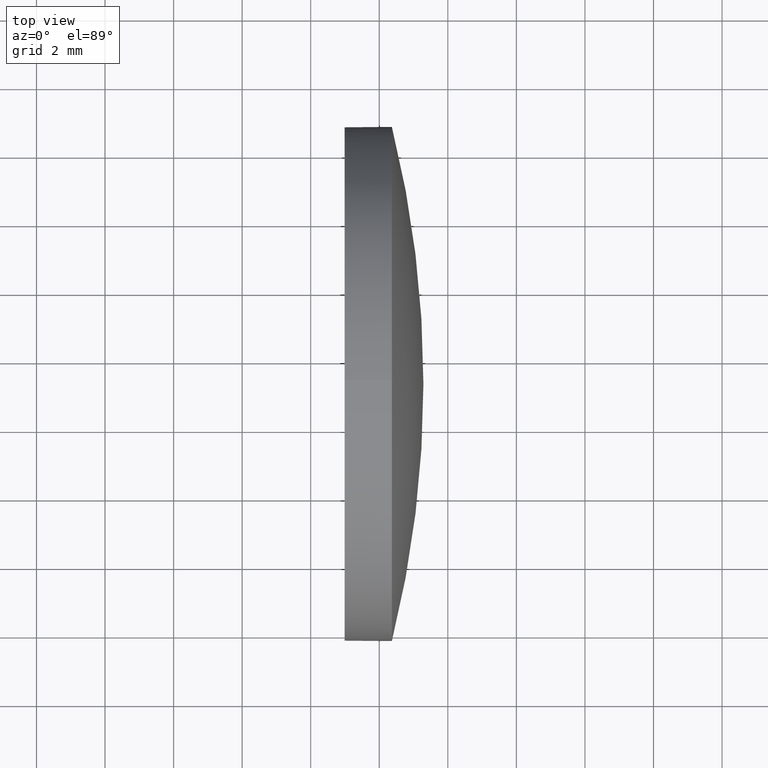
[diagram: clean part render]
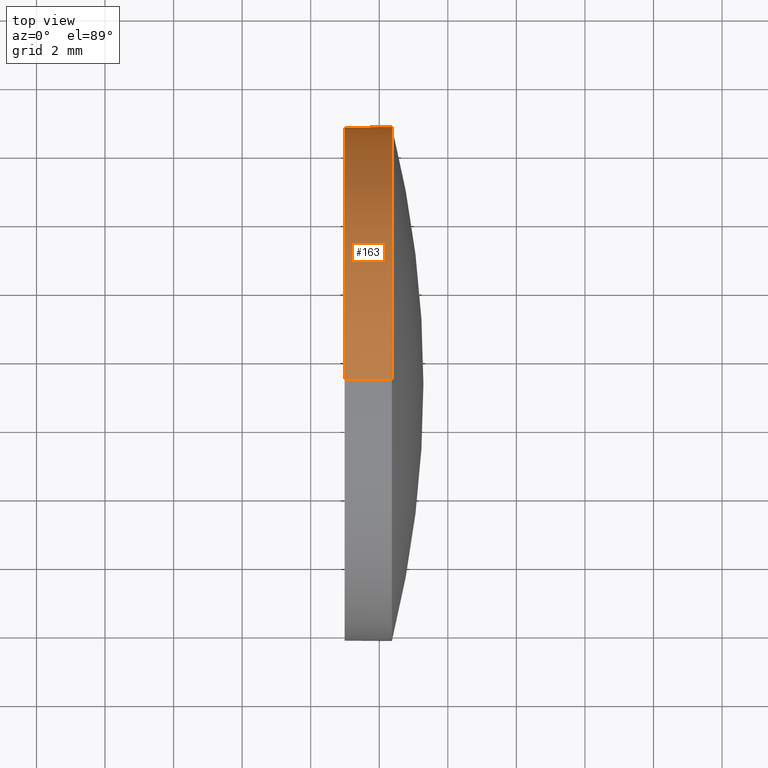
[diagram: same view with one face highlighted and labeled with its STEP entity id]
A machine part, top view. The second image highlights one B-rep face of the part: STEP entity #163.
In plain terms, the highlighted cylindrical surface (partial cylindrical patch) has radius 7.5 mm, axis along (-1, -0, -0).
Its self-contained STEP definition (entity closure, byte-faithful):
#6 = LINE ( 'NONE', #182, #33 ) ;
#7 = EDGE_CURVE ( 'NONE', #23, #117, #101, .T. ) ;
#15 = EDGE_CURVE ( 'NONE', #160, #120, #89, .T. ) ;
#16 = DIRECTION ( 'NONE',  ( -1.000000000000000000, -0.0000000000000000000, -0.0000000000000000000 ) ) ;
#21 = CARTESIAN_POINT ( 'NONE',  ( 578.9881567995189500, 147.2765599219413800, -7.500000000000007100 ) ) ;
#23 = VERTEX_POINT ( 'NONE', #64 ) ;
#25 = ORIENTED_EDGE ( 'NONE', *, *, #26, .T. ) ;
#26 = EDGE_CURVE ( 'NONE', #183, #160, #75, .T. ) ;
#33 = VECTOR ( 'NONE', #69, 1000.000000000000000 ) ;
#36 = CARTESIAN_POINT ( 'NONE',  ( 580.3681567995189400, 147.2765599219413800, 7.500000000000007100 ) ) ;
#38 = CYLINDRICAL_SURFACE ( 'NONE', #55, 7.500000000000007100 ) ;
#39 = CARTESIAN_POINT ( 'NONE',  ( 580.3681567995189400, 154.7765599219414700, 9.184850993605047400E-016 ) ) ;
#40 = CARTESIAN_POINT ( 'NONE',  ( 580.3681567995189400, 147.2765599219413800, -7.500000000000007100 ) ) ;
#44 = LINE ( 'NONE', #95, #126 ) ;
#45 = AXIS2_PLACEMENT_3D ( 'NONE', #48, #67, #46 ) ;
#46 = DIRECTION ( 'NONE',  ( 0.0000000000000000000, 0.0000000000000000000, 1.000000000000000000 ) ) ;
#48 = CARTESIAN_POINT ( 'NONE',  ( 580.3681567995189400, 147.2765599219413800, 0.0000000000000000000 ) ) ;
#55 = AXIS2_PLACEMENT_3D ( 'NONE', #158, #177, #143 ) ;
#63 = DIRECTION ( 'NONE',  ( 0.0000000000000000000, 0.0000000000000000000, 1.000000000000000000 ) ) ;
#64 = CARTESIAN_POINT ( 'NONE',  ( 578.9881567995189500, 147.2765599219413800, 7.500000000000007100 ) ) ;
#67 = DIRECTION ( 'NONE',  ( -1.000000000000000000, -0.0000000000000000000, -0.0000000000000000000 ) ) ;
#69 = DIRECTION ( 'NONE',  ( -1.000000000000000000, -0.0000000000000000000, -0.0000000000000000000 ) ) ;
#70 = ORIENTED_EDGE ( 'NONE', *, *, #7, .F. ) ;
#75 = CIRCLE ( 'NONE', #108, 7.500000000000007100 ) ;
#79 = EDGE_LOOP ( 'NONE', ( #175, #100, #70, #169, #25 ) ) ;
#80 = DIRECTION ( 'NONE',  ( 0.0000000000000000000, 0.0000000000000000000, 1.000000000000000000 ) ) ;
#85 = FACE_OUTER_BOUND ( 'NONE', #79, .T. ) ;
#89 = CIRCLE ( 'NONE', #45, 7.500000000000007100 ) ;
#95 = CARTESIAN_POINT ( 'NONE',  ( 576.6614697419953500, 147.2765599219413800, 7.500000000000007100 ) ) ;
#100 = ORIENTED_EDGE ( 'NONE', *, *, #151, .T. ) ;
#101 = CIRCLE ( 'NONE', #137, 7.500000000000007100 ) ;
#102 = CARTESIAN_POINT ( 'NONE',  ( 578.9881567995189500, 147.2765599219413800, 0.0000000000000000000 ) ) ;
#103 = CARTESIAN_POINT ( 'NONE',  ( 580.3681567995189400, 147.2765599219413800, 0.0000000000000000000 ) ) ;
#104 = DIRECTION ( 'NONE',  ( -1.000000000000000000, -0.0000000000000000000, -0.0000000000000000000 ) ) ;
#108 = AXIS2_PLACEMENT_3D ( 'NONE', #103, #16, #80 ) ;
#117 = VERTEX_POINT ( 'NONE', #21 ) ;
#120 = VERTEX_POINT ( 'NONE', #40 ) ;
#126 = VECTOR ( 'NONE', #129, 1000.000000000000000 ) ;
#129 = DIRECTION ( 'NONE',  ( -1.000000000000000000, -0.0000000000000000000, -0.0000000000000000000 ) ) ;
#137 = AXIS2_PLACEMENT_3D ( 'NONE', #102, #104, #63 ) ;
#143 = DIRECTION ( 'NONE',  ( 0.0000000000000000000, 0.0000000000000000000, 1.000000000000000000 ) ) ;
#151 = EDGE_CURVE ( 'NONE', #120, #117, #6, .T. ) ;
#158 = CARTESIAN_POINT ( 'NONE',  ( 576.6614697419953500, 147.2765599219413800, 0.0000000000000000000 ) ) ;
#160 = VERTEX_POINT ( 'NONE', #39 ) ;
#163 = ADVANCED_FACE ( 'NONE', ( #85 ), #38, .T. ) ;
#169 = ORIENTED_EDGE ( 'NONE', *, *, #172, .F. ) ;
#172 = EDGE_CURVE ( 'NONE', #183, #23, #44, .T. ) ;
#175 = ORIENTED_EDGE ( 'NONE', *, *, #15, .T. ) ;
#177 = DIRECTION ( 'NONE',  ( -1.000000000000000000, -0.0000000000000000000, -0.0000000000000000000 ) ) ;
#182 = CARTESIAN_POINT ( 'NONE',  ( 576.6614697419953500, 147.2765599219413800, -7.500000000000007100 ) ) ;
#183 = VERTEX_POINT ( 'NONE', #36 ) ;